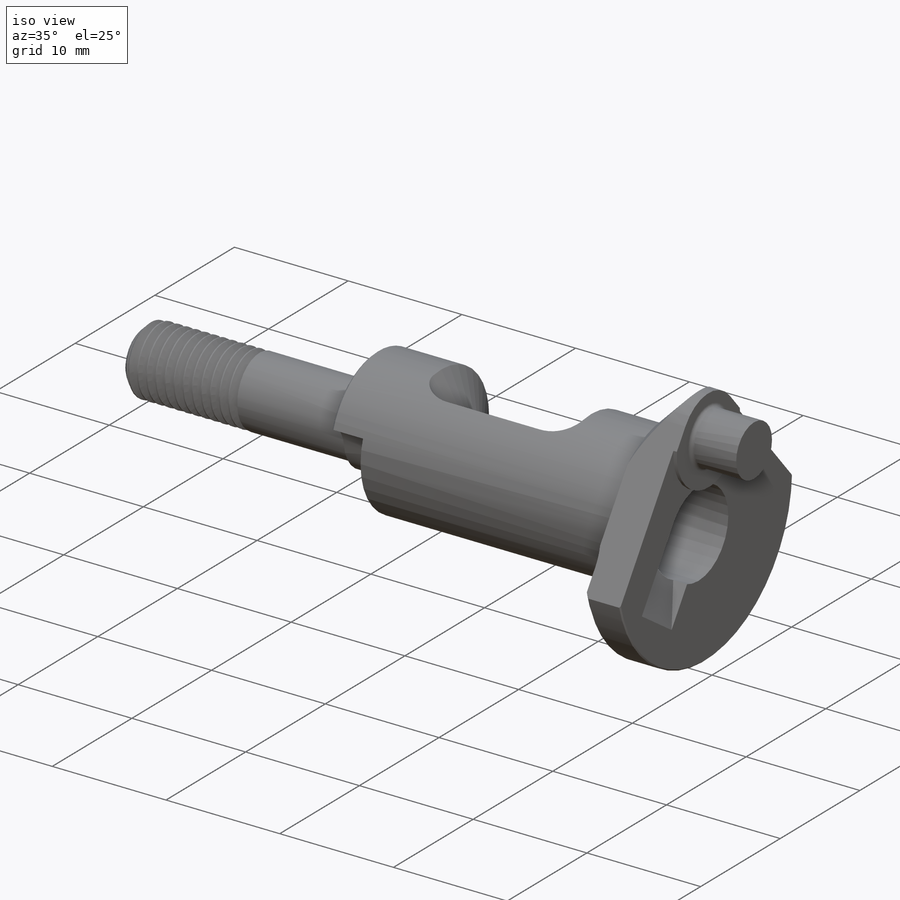
[diagram: iso view]
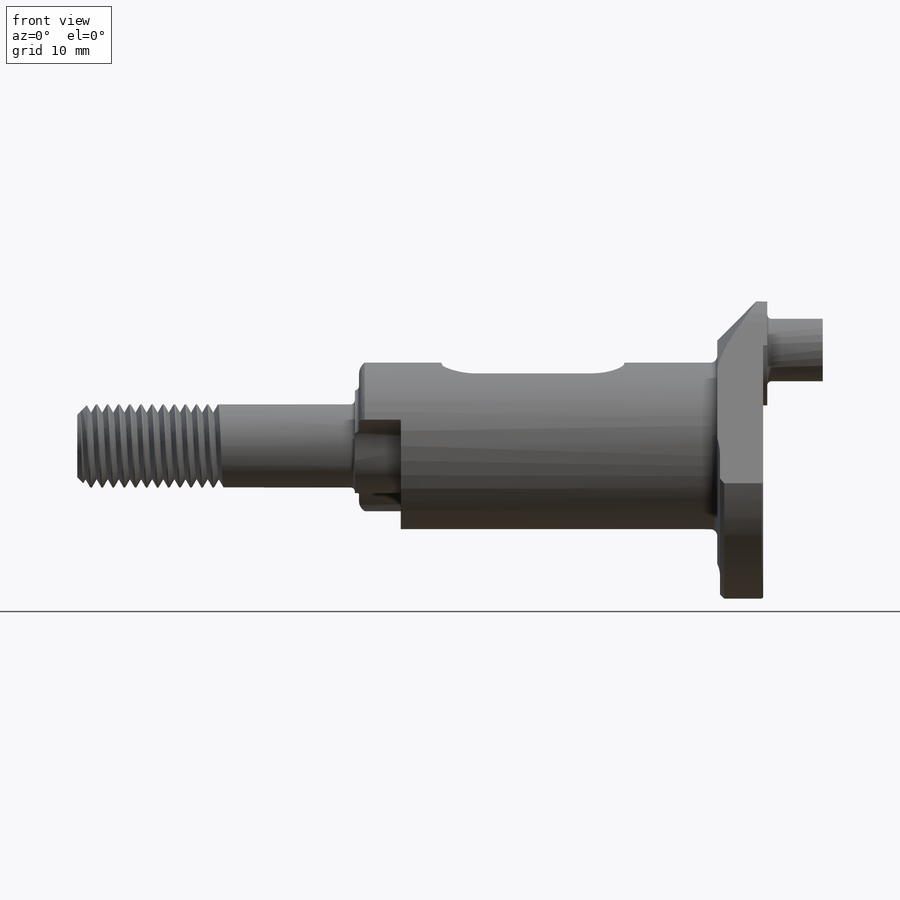
[diagram: front view]
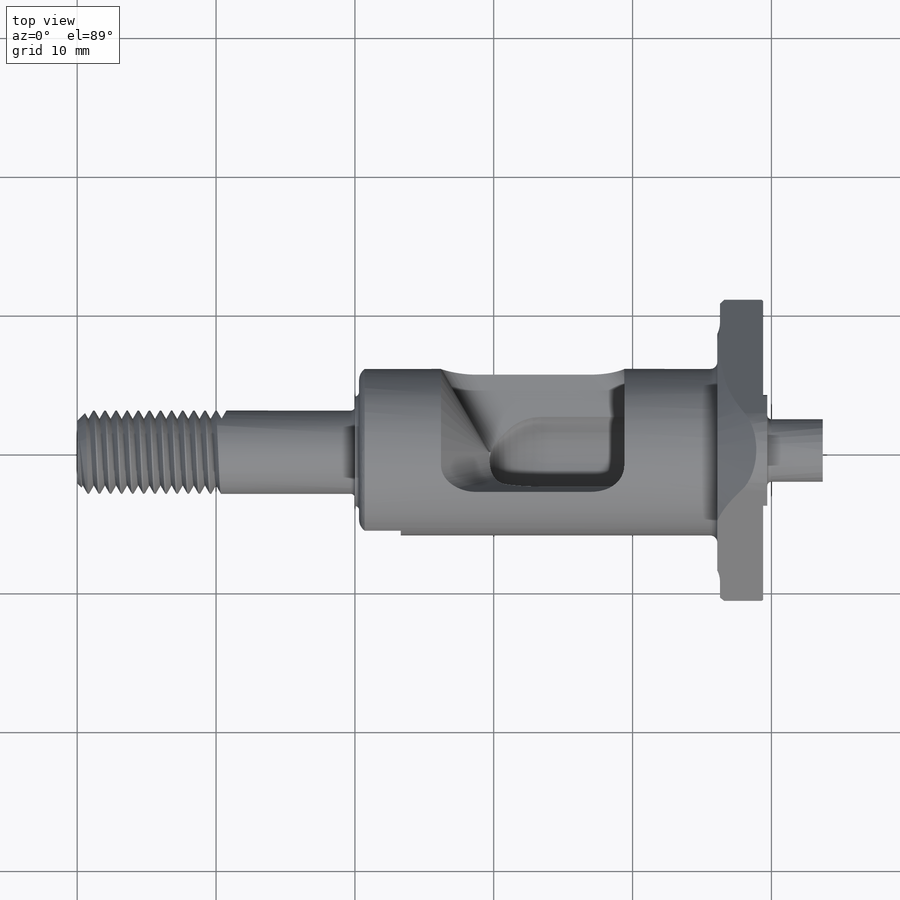
[diagram: top view]
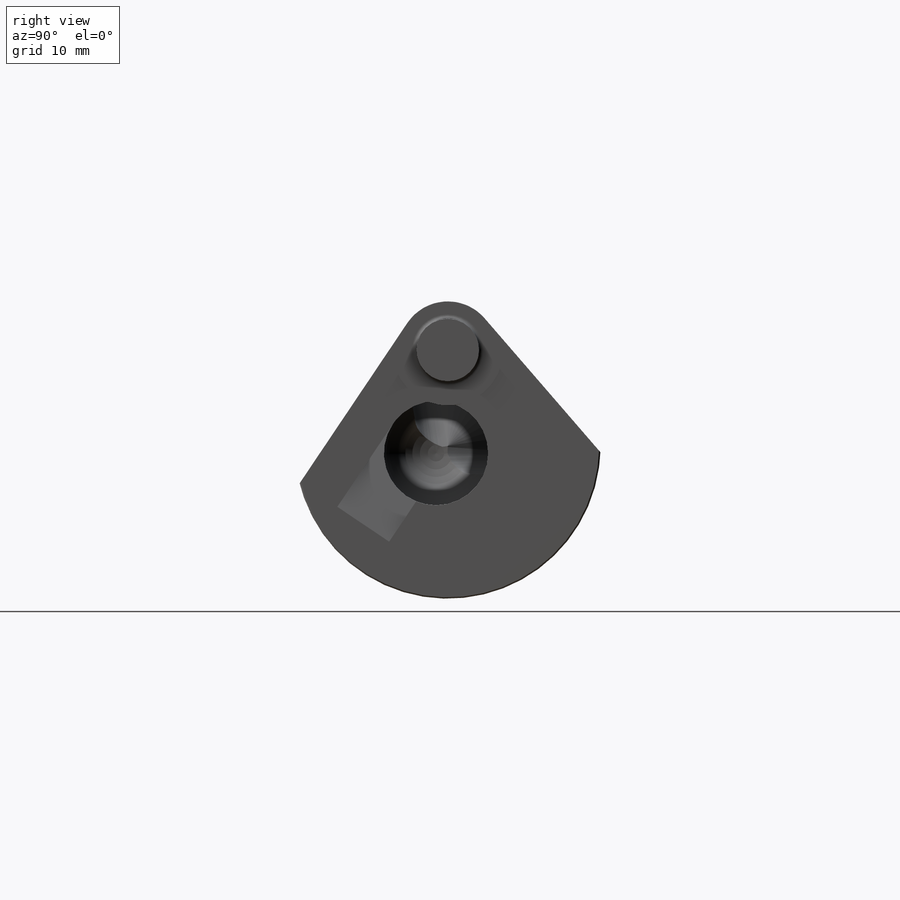
[diagram: right view]
SOLIDWORKS PART (.sldprt)
format: sldprt  version: not decoded by parser v0  size: 608,768 bytes
history: native  units: mm
features: sketch x17, cut_extrude x6, plane x3, cut_revolve x3, revolve x2, helix x2, material x1, sweep x1, fillet x1 (+13 scaffold rows collapsed)
feature tree (49):
  scaffold x13  (default folders/planes/origin — collapsed)
  material  "Alloy Steel"
  sketch  "Sketch1"  dims[c1.D1=0.3mm c1.D11=0.3mm c1.D13=0.5mm c1.D17=2.0mm c2.D11=0.35mm c2.D26=1.0mm c2.D2=6.0mm c2.D3=2.0mm c2.D4=0.5mm c2.D5=0.5mm c2.D6=4.5mm c2.D7=~0.981785mm c3.D7=75.0deg c3.D8=2.0mm c3.D9=8.0mm c3.D10=0.3mm c3.D12=12.0mm c3.D14=3.3mm c3.D15=17.0mm c3.D16=0.2mm c3.D18=0.3mm c3.D19=0.1mm c3.D20=0.3mm c3.D21=0.1mm c3.D22=49.4mm c3.D23=22.0mm c3.D24=20.0mm c3.D25=0.7mm]
  revolve  "Revolve1"  Angle=360deg
  sketch  "Sketch2"  dims[c1.D1=0.3mm c1.D2=0.3mm c1.D3=4.0mm c1.D4=6.91mm c1.D5=4.5mm c1.D6=8.0mm c2.D2=0.3mm]
  revolve  "Revolve2"  Angle=360deg
  sketch  "Sketch3"  dims[D1=3.5mm]
  cut_extrude  "Cut-Extrude1"  [1 undecoded]
  sketch  "Sketch4"  dims[D1=6.0mm]
  helix  "Helix/Spiral1"  Pitch=10.4mm
  sketch  "Sketch5"  dims[c1.D1=0.7mm c1.D2=~0.168534mm c2.D2=60.0deg]
  sweep  "Cut-Sweep1"
  sketch  "Sketch6"  dims[D1=0.0mm]
  cut_extrude  "Cut-Extrude2"  Depth=0 Axis2=0
  sketch  "Sketch7"  dims[c1.D1=3.4mm c1.D2=2.5mm c1.D3=11.5mm c1.D4=~15.164719mm c2.D4=145.0deg]
  cut_extrude  "Cut-Extrude3"  Depth=3.3mm
  sketch  "Sketch8"  dims[c1.D4=7.6mm c1.D1=~11.443497mm c2.D1=45.0deg c2.D2=~11.443497mm c3.D2=50.0deg c3.D3=5.0mm]
  plane  "Plane1"
  sketch  "Sketch9"  dims[D1=4.0mm]
  helix  "Cut-Sweep2"  [1 undecoded]
  plane  "Plane2"
  sketch  "Sketch10"  dims[D1=1.0mm D2=7.5mm D3=16.0mm]
  cut_revolve  "Cut-Revolve1"  Angle=360deg
  sketch  "Sketch11"
  plane  "Plane3"
  sketch  "Sketch12"  dims[D1=2.5mm D2=2.0mm]
  cut_extrude  "Cut-Extrude4"  Depth=4.5mm
  sketch  "Sketch13"  dims[c1.D1=6.2mm c1.D2=19.4mm c1.D3=~9.186041mm c2.D3=45.0deg c2.D4=13.2mm c3.D4=60.0deg]
  cut_revolve  "Cut-Revolve2"  Angle=10deg
  sketch  "Sketch16"
  cut_extrude  "Cut-Extrude5"  Depth=2mm
  sketch  "Sketch14"
  cut_revolve  "Cut-Revolve3"  Angle=91deg
  sketch  "Sketch17"
  cut_extrude  "Cut-Extrude6"  Depth=2mm
  fillet  "Fillet1"  Radius=2mm
  sketch  "Sketch18"  dims[D2=12.0mm D1=~8.054953mm D3=11.3mm D4=4.51mm D5=~10.355547mm]
decode coverage: 25 of 32 modeling features carry decoded parameters
note: ~ marks probable driven/reference dimensions
note: 2 parameter values undecoded
note: suppression state not decoded; provenance and decode notes live in map.json
